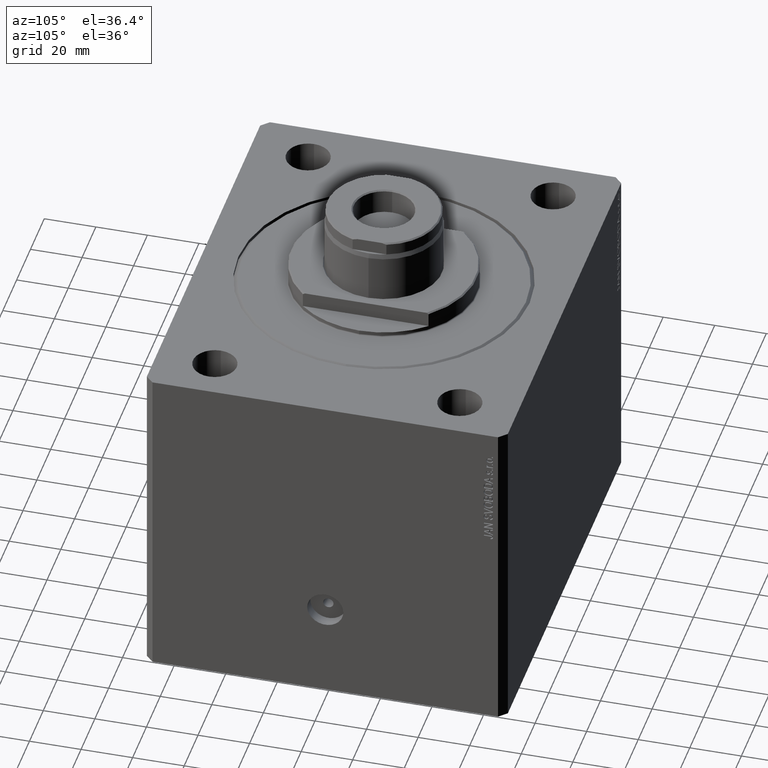
[diagram: clean part render]
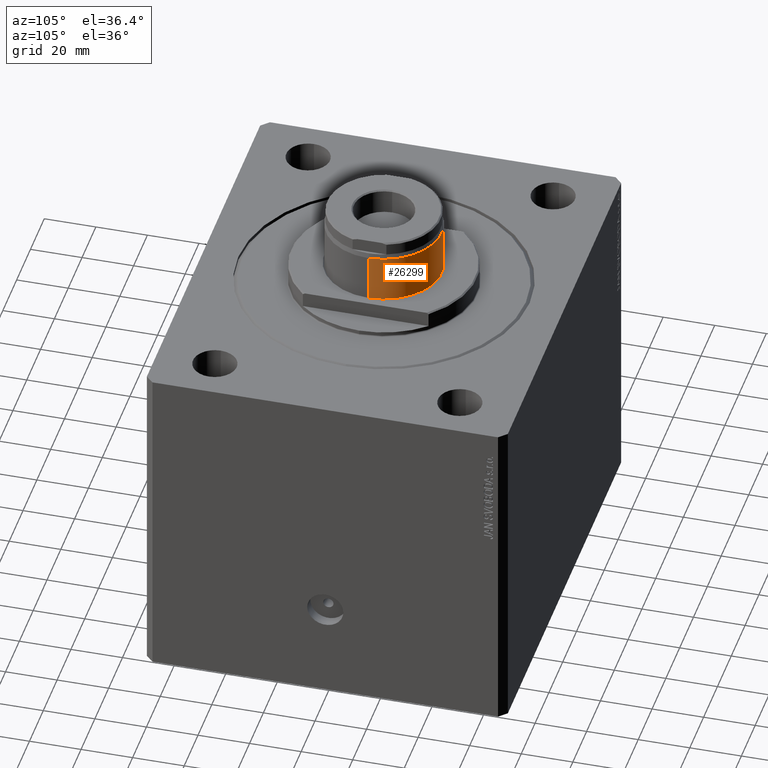
[diagram: same view with one face highlighted and labeled with its STEP entity id]
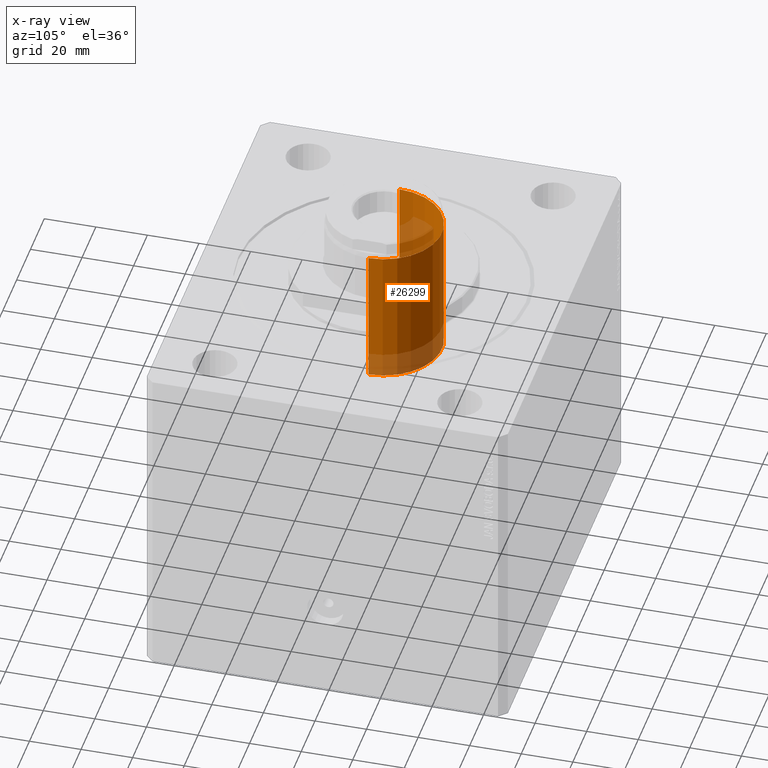
[diagram: x-ray of the same camera — body ghosted, the highlighted face saturated]
A machine part, auxiliary view. The second image highlights one B-rep face of the part: STEP entity #26299.
The next image is the same camera in x-ray: the body ghosted, the highlighted face saturated — about 24% of this face is hidden behind the body in this view.
In plain terms, the highlighted cylindrical surface (partial cylindrical patch) has radius 22.5 mm, axis along (0, -0, 1).
Its self-contained STEP definition (entity closure, byte-faithful):
#1118 = CARTESIAN_POINT ( 'NONE',  ( -61.00000000000000000, 2.755455298081544778E-15, 22.50000000000000000 ) ) ;
#1245 = CARTESIAN_POINT ( 'NONE',  ( -6.918686402804942404, 0.000000000000000000, 22.50000000000000000 ) ) ;
#1846 = VERTEX_POINT ( 'NONE', #25176 ) ;
#2277 = VERTEX_POINT ( 'NONE', #1245 ) ;
#2651 = VECTOR ( 'NONE', #7792, 1000.000000000000000 ) ;
#2795 = AXIS2_PLACEMENT_3D ( 'NONE', #18412, #39551, #39127 ) ;
#3651 = CARTESIAN_POINT ( 'NONE',  ( -61.00000000000000000, 0.000000000000000000, 0.000000000000000000 ) ) ;
#4325 = ORIENTED_EDGE ( 'NONE', *, *, #39160, .F. ) ;
#4804 = CYLINDRICAL_SURFACE ( 'NONE', #2795, 22.50000000000000000 ) ;
#5866 = EDGE_LOOP ( 'NONE', ( #8614, #37166, #34686, #4325 ) ) ;
#7792 = DIRECTION ( 'NONE',  ( 1.000000000000000000, -0.000000000000000000, -0.000000000000000000 ) ) ;
#8316 = CARTESIAN_POINT ( 'NONE',  ( -6.918686402804942404, 2.755455298081544778E-15, -22.50000000000000000 ) ) ;
#8490 = CIRCLE ( 'NONE', #33383, 22.50000000000000000 ) ;
#8509 = DIRECTION ( 'NONE',  ( 0.000000000000000000, 0.000000000000000000, -1.000000000000000000 ) ) ;
#8614 = ORIENTED_EDGE ( 'NONE', *, *, #26499, .T. ) ;
#10515 = DIRECTION ( 'NONE',  ( 1.000000000000000000, -0.000000000000000000, -0.000000000000000000 ) ) ;
#12126 = VERTEX_POINT ( 'NONE', #8316 ) ;
#17254 = DIRECTION ( 'NONE',  ( 1.000000000000000000, -0.000000000000000000, -0.000000000000000000 ) ) ;
#18412 = CARTESIAN_POINT ( 'NONE',  ( 19.65248442594125322, 0.000000000000000000, 0.000000000000000000 ) ) ;
#19055 = VECTOR ( 'NONE', #10515, 1000.000000000000000 ) ;
#19619 = CARTESIAN_POINT ( 'NONE',  ( -6.918686402804942404, 0.000000000000000000, 0.000000000000000000 ) ) ;
#20818 = DIRECTION ( 'NONE',  ( 0.000000000000000000, 0.000000000000000000, -1.000000000000000000 ) ) ;
#24221 = EDGE_CURVE ( 'NONE', #12126, #2277, #26935, .T. ) ;
#25176 = CARTESIAN_POINT ( 'NONE',  ( -61.00000000000000000, 0.000000000000000000, -22.50000000000000000 ) ) ;
#26299 = ADVANCED_FACE ( 'NONE', ( #29292 ), #4804, .T. ) ;
#26499 = EDGE_CURVE ( 'NONE', #1846, #30800, #8490, .T. ) ;
#26935 = CIRCLE ( 'NONE', #33324, 22.50000000000000000 ) ;
#28987 = DIRECTION ( 'NONE',  ( 1.000000000000000000, -0.000000000000000000, -0.000000000000000000 ) ) ;
#29292 = FACE_OUTER_BOUND ( 'NONE', #5866, .T. ) ;
#30800 = VERTEX_POINT ( 'NONE', #1118 ) ;
#32496 = LINE ( 'NONE', #41892, #2651 ) ;
#33324 = AXIS2_PLACEMENT_3D ( 'NONE', #19619, #28987, #8509 ) ;
#33383 = AXIS2_PLACEMENT_3D ( 'NONE', #3651, #17254, #20818 ) ;
#34686 = ORIENTED_EDGE ( 'NONE', *, *, #24221, .F. ) ;
#37166 = ORIENTED_EDGE ( 'NONE', *, *, #39542, .T. ) ;
#38140 = LINE ( 'NONE', #41054, #19055 ) ;
#39127 = DIRECTION ( 'NONE',  ( 0.000000000000000000, 0.000000000000000000, -1.000000000000000000 ) ) ;
#39160 = EDGE_CURVE ( 'NONE', #1846, #12126, #38140, .T. ) ;
#39542 = EDGE_CURVE ( 'NONE', #30800, #2277, #32496, .T. ) ;
#39551 = DIRECTION ( 'NONE',  ( 1.000000000000000000, -0.000000000000000000, -0.000000000000000000 ) ) ;
#41054 = CARTESIAN_POINT ( 'NONE',  ( 19.65248442594125322, 0.000000000000000000, -22.50000000000000000 ) ) ;
#41892 = CARTESIAN_POINT ( 'NONE',  ( 19.65248442594125322, 2.755455298081544778E-15, 22.50000000000000000 ) ) ;